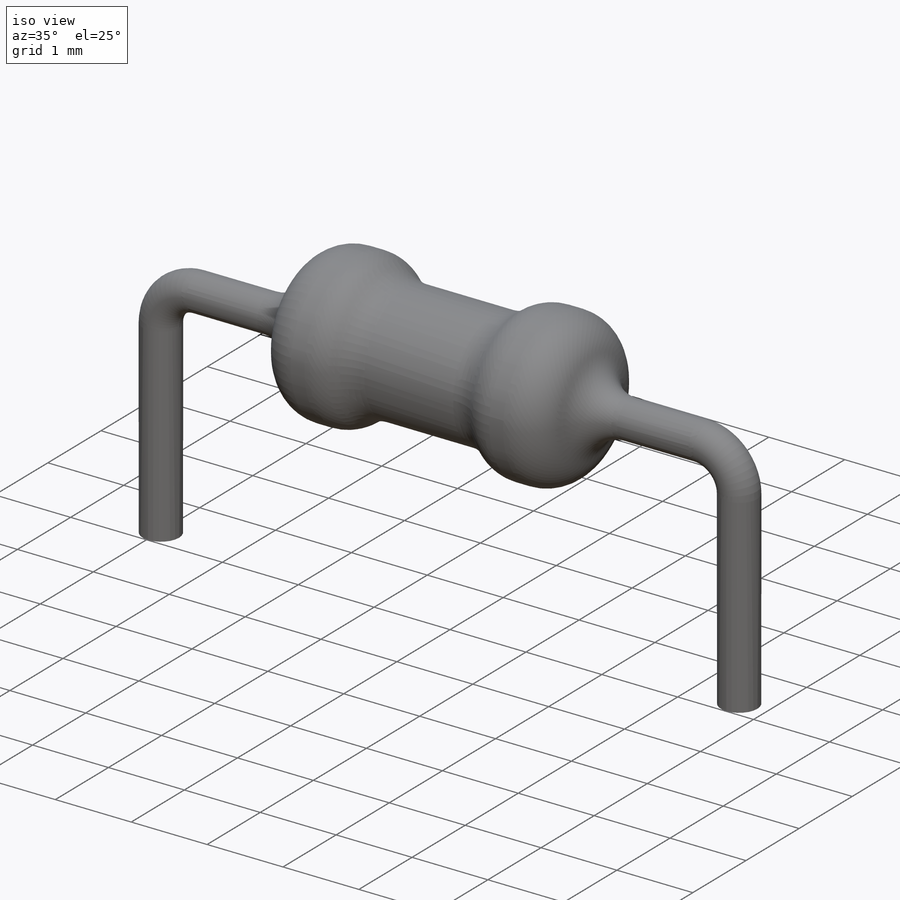
[diagram: iso view]
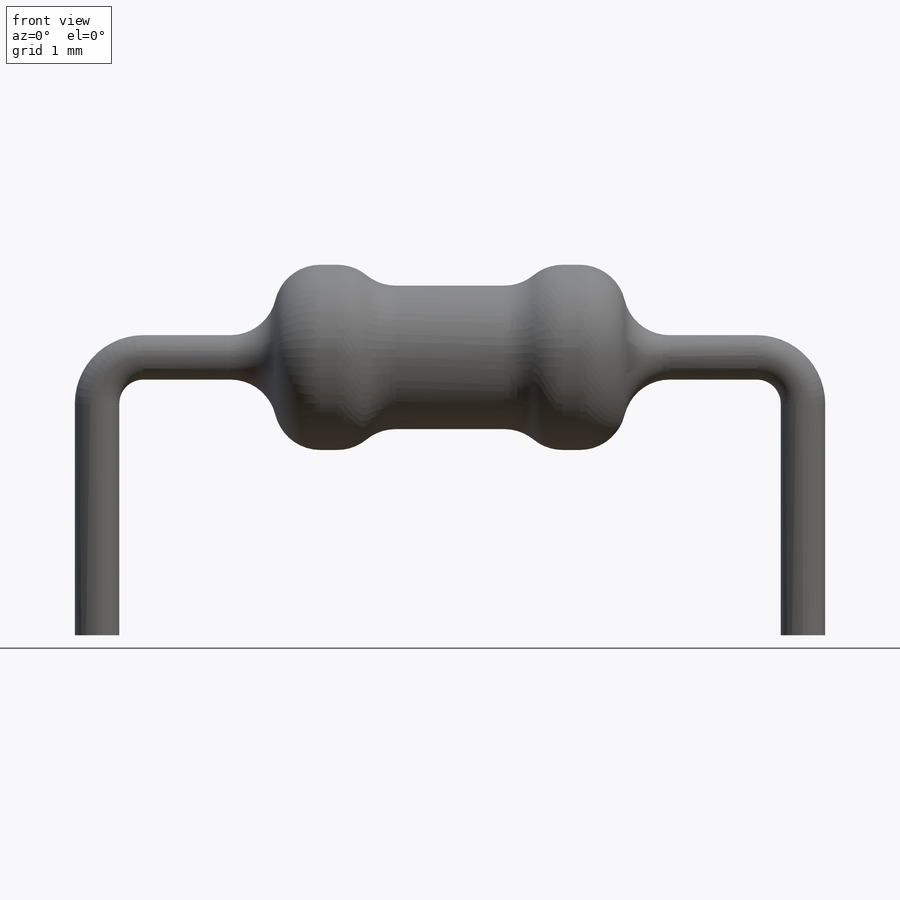
[diagram: front view]
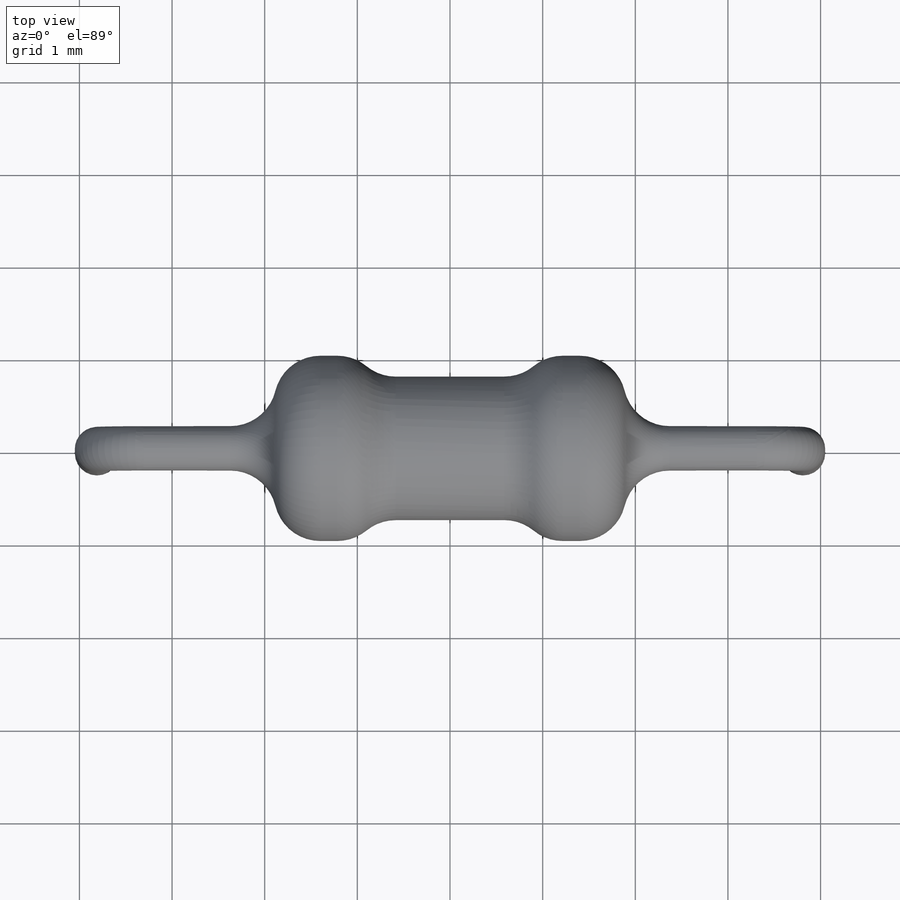
[diagram: top view]
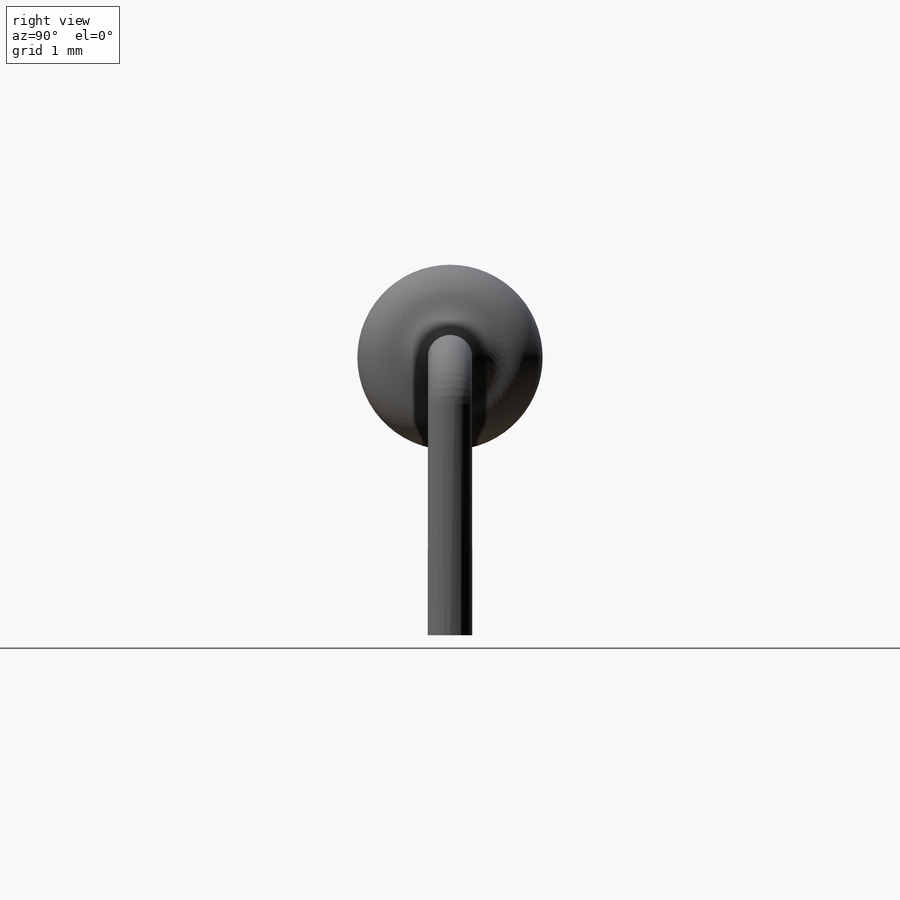
[diagram: right view]
SOLIDWORKS PART (.sldprt)
format: sldprt  version: not decoded by parser v0  size: 354,304 bytes
history: native  units: mm
features: sketch x5, fillet x3, extrude x2, plane x2, material x1, mirror x1, sweep x1 (+12 scaffold rows collapsed)
feature tree (27):
  scaffold x12  (default folders/planes/origin — collapsed)
  material  "Material <not specified>"
  sketch  "Sketch1"  dims[D1=1.55mm]
  extrude  "Extrude1"  Depth=1.9mm
  sketch  "Sketch2"  dims[D1=2.0mm]
  extrude  "Extrude2"  Depth=1.1mm
  mirror  "Mirror1"
  fillet  "Fillet1"  Radius=0.5mm
  sketch  "Sketch3"  dims[D3=0.5mm D1=7.62mm D2=2.0mm]
  plane  "Plane1"
  sketch  "Sketch4"  dims[D1=0.48mm]
  sweep  "Sweep1"
  fillet  "Fillet2"  Radius=0.5mm
  fillet  "Fillet3"  Radius=0.5mm
  plane  "Board Plane"  Offset=1.2mm
  sketch  "Component_Outline"
decode coverage: 9 of 12 modeling features carry decoded parameters
note: suppression state not decoded; provenance and decode notes live in map.json
